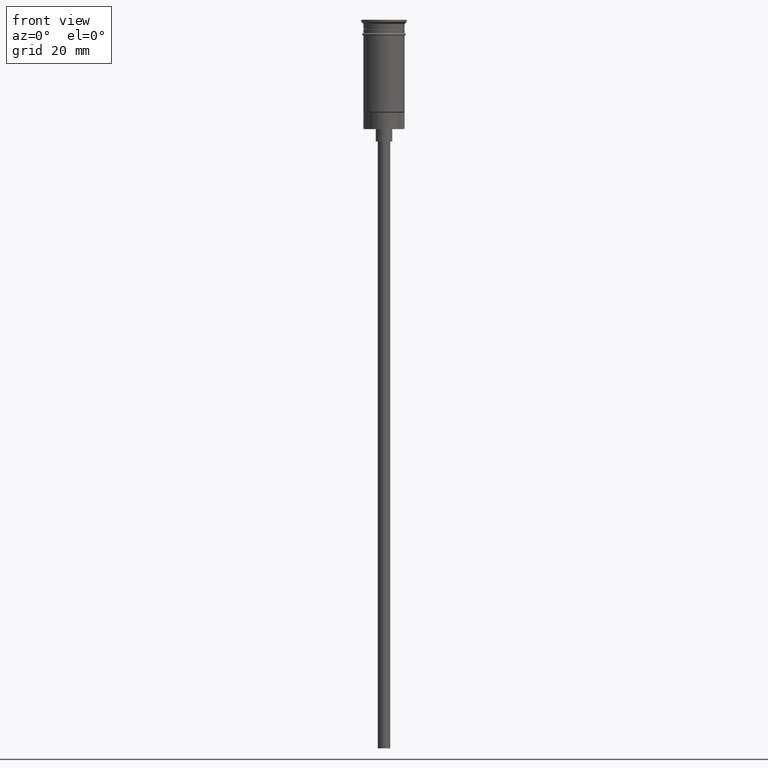
[diagram: clean part render]
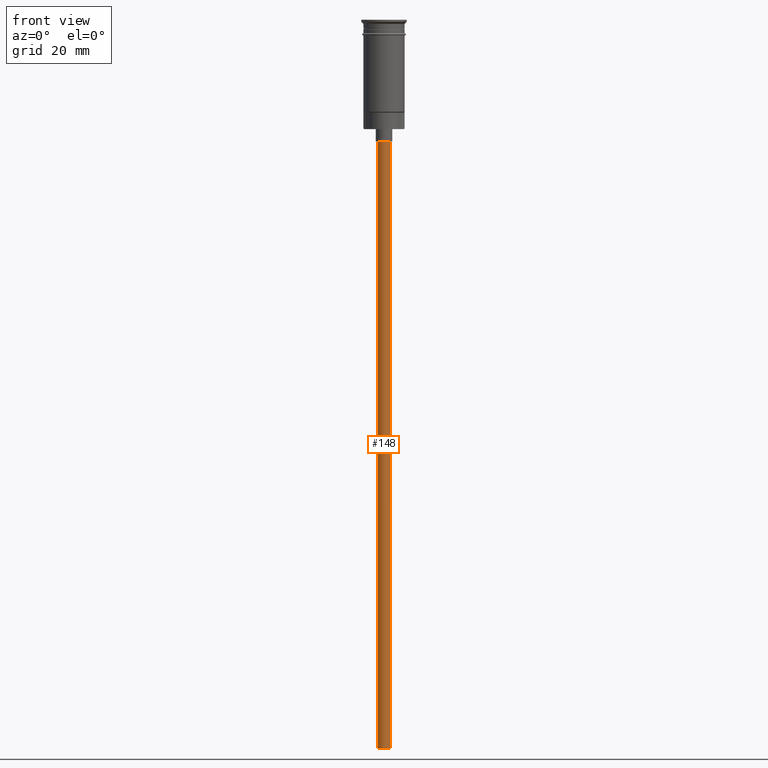
[diagram: same view with one face highlighted and labeled with its STEP entity id]
A machine part, front view. The second image highlights one B-rep face of the part: STEP entity #148.
In plain terms, the highlighted cylindrical surface (edge-blend (fillet) strip) has radius 1.5 mm, axis along (-0, -0, 1).
Its self-contained STEP definition (entity closure, byte-faithful):
#65 = ORIENTED_EDGE ( 'NONE', *, *, #344, .T. ) ;
#148 = ADVANCED_FACE ( 'NONE', ( #806 ), #898, .T. ) ;
#157 = DIRECTION ( 'NONE',  ( -0.000000000000000000, -0.000000000000000000, 1.000000000000000000 ) ) ;
#271 = CARTESIAN_POINT ( 'NONE',  ( 1.500000000000000222, 0.000000000000000000, -176.5000000000000000 ) ) ;
#272 = EDGE_CURVE ( 'NONE', #1443, #1022, #1348, .T. ) ;
#295 = DIRECTION ( 'NONE',  ( -0.000000000000000000, -0.000000000000000000, 1.000000000000000000 ) ) ;
#297 = AXIS2_PLACEMENT_3D ( 'NONE', #873, #768, #1118 ) ;
#327 = CIRCLE ( 'NONE', #297, 1.500000000000000222 ) ;
#344 = EDGE_CURVE ( 'NONE', #1012, #1121, #327, .T. ) ;
#353 = VECTOR ( 'NONE', #157, 1000.000000000000000 ) ;
#363 = ORIENTED_EDGE ( 'NONE', *, *, #420, .F. ) ;
#420 = EDGE_CURVE ( 'NONE', #1022, #1121, #1280, .T. ) ;
#428 = DIRECTION ( 'NONE',  ( 1.000000000000000000, 0.000000000000000000, 0.000000000000000000 ) ) ;
#503 = CARTESIAN_POINT ( 'NONE',  ( 1.500000000000000222, 0.000000000000000000, -176.5000000000000000 ) ) ;
#530 = DIRECTION ( 'NONE',  ( -0.000000000000000000, -0.000000000000000000, 1.000000000000000000 ) ) ;
#532 = EDGE_LOOP ( 'NONE', ( #363, #646, #1315, #65 ) ) ;
#559 = CARTESIAN_POINT ( 'NONE',  ( 1.500000000000000222, 0.000000000000000000, -29.50000000000000000 ) ) ;
#563 = AXIS2_PLACEMENT_3D ( 'NONE', #921, #295, #428 ) ;
#593 = DIRECTION ( 'NONE',  ( -1.000000000000000000, 0.000000000000000000, 0.000000000000000000 ) ) ;
#646 = ORIENTED_EDGE ( 'NONE', *, *, #272, .F. ) ;
#703 = CARTESIAN_POINT ( 'NONE',  ( 0.000000000000000000, 0.000000000000000000, -176.5000000000000000 ) ) ;
#768 = DIRECTION ( 'NONE',  ( 0.000000000000000000, 0.000000000000000000, -1.000000000000000000 ) ) ;
#806 = FACE_OUTER_BOUND ( 'NONE', #532, .T. ) ;
#859 = EDGE_CURVE ( 'NONE', #1443, #1012, #1522, .T. ) ;
#873 = CARTESIAN_POINT ( 'NONE',  ( 0.000000000000000000, 0.000000000000000000, -29.50000000000000000 ) ) ;
#898 = CYLINDRICAL_SURFACE ( 'NONE', #563, 1.500000000000000222 ) ;
#921 = CARTESIAN_POINT ( 'NONE',  ( 0.000000000000000000, 0.000000000000000000, -176.5000000000000000 ) ) ;
#949 = VECTOR ( 'NONE', #530, 1000.000000000000000 ) ;
#1012 = VERTEX_POINT ( 'NONE', #559 ) ;
#1022 = VERTEX_POINT ( 'NONE', #1530 ) ;
#1079 = DIRECTION ( 'NONE',  ( 0.000000000000000000, 0.000000000000000000, -1.000000000000000000 ) ) ;
#1083 = AXIS2_PLACEMENT_3D ( 'NONE', #703, #1079, #593 ) ;
#1118 = DIRECTION ( 'NONE',  ( -1.000000000000000000, 0.000000000000000000, 0.000000000000000000 ) ) ;
#1121 = VERTEX_POINT ( 'NONE', #1475 ) ;
#1280 = LINE ( 'NONE', #1527, #353 ) ;
#1315 = ORIENTED_EDGE ( 'NONE', *, *, #859, .T. ) ;
#1348 = CIRCLE ( 'NONE', #1083, 1.500000000000000222 ) ;
#1443 = VERTEX_POINT ( 'NONE', #503 ) ;
#1475 = CARTESIAN_POINT ( 'NONE',  ( -1.500000000000000222, 1.836970198721030181E-16, -29.50000000000000000 ) ) ;
#1522 = LINE ( 'NONE', #271, #949 ) ;
#1527 = CARTESIAN_POINT ( 'NONE',  ( -1.500000000000000222, 1.836970198721030181E-16, -176.5000000000000000 ) ) ;
#1530 = CARTESIAN_POINT ( 'NONE',  ( -1.500000000000000222, 1.836970198721030181E-16, -176.5000000000000000 ) ) ;